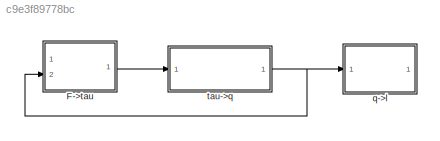
MODEL slx_c9e3f89778bc
KIND model
CONFIG AbsTol = auto
CONFIG EnableMultiTasking = off
CONFIG FixedStep = auto
CONFIG MaxStep = auto
CONFIG MinStep = auto
CONFIG RelTol = 1e-3
CONFIG SampleTimeConstraint = Unconstrained
CONFIG Solver = VariableStepAuto
CONFIG SolverName = VariableStepAuto
CONFIG StartTime = 0.0
CONFIG StopTime = 10.0
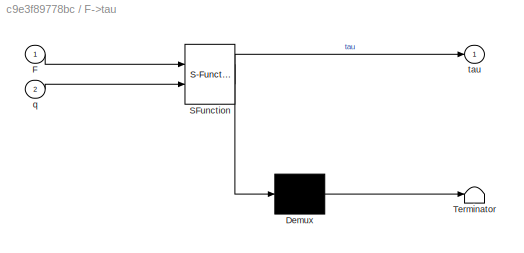
BLOCK [SubSystem] F->tau
  ErrorFcn = Stateflow.Translate.translate
  PermitHierarchicalResolution = ExplicitOnly
  Ports = [2, 1]
  RequestExecContextInheritance = off
  SFBlockType = MATLAB Function
  TreatAsAtomicUnit = on
BLOCK [Demux] F->tau/ Demux 
  Outputs = 1
  Ports = [1, 1]
BLOCK [S-Function] F->tau/ SFunction 
  EnableBusSupport = on
  FunctionName = sf_sfun
  PortCounts = [2 2]
  Ports = [2, 2]
  SFcnIsStateOwnerBlock = off
  SFunctionDeploymentMode = off
  Tag = Stateflow S-Function Controller 2
BLOCK [Terminator] F->tau/ Terminator 
BLOCK [Inport] F->tau/F
  IconDisplay = Port number
BLOCK [Inport] F->tau/q
  IconDisplay = Port number
  Port = 2
BLOCK [Outport] F->tau/tau
  IconDisplay = Port number
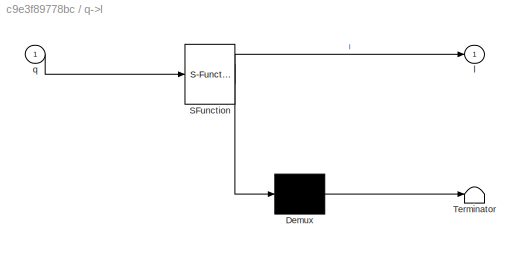
BLOCK [SubSystem] q->l
  ErrorFcn = Stateflow.Translate.translate
  PermitHierarchicalResolution = ExplicitOnly
  Ports = [1, 1]
  RequestExecContextInheritance = off
  SFBlockType = MATLAB Function
  TreatAsAtomicUnit = on
BLOCK [Demux] q->l/ Demux 
  Outputs = 1
  Ports = [1, 1]
BLOCK [S-Function] q->l/ SFunction 
  EnableBusSupport = on
  FunctionName = sf_sfun
  PortCounts = [1 2]
  Ports = [1, 2]
  SFcnIsStateOwnerBlock = off
  SFunctionDeploymentMode = off
  Tag = Stateflow S-Function Controller 1
BLOCK [Terminator] q->l/ Terminator 
BLOCK [Outport] q->l/l
  IconDisplay = Port number
BLOCK [Inport] q->l/q
  IconDisplay = Port number
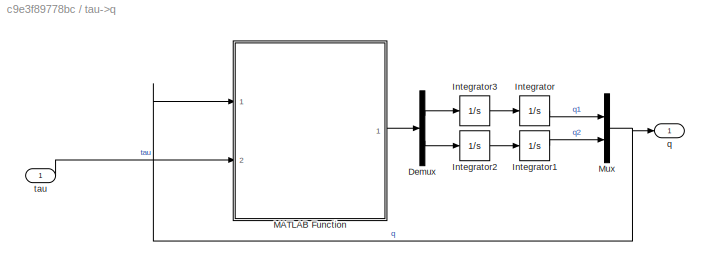
BLOCK [SubSystem] tau->q
  Ports = [1, 1]
  RequestExecContextInheritance = off
BLOCK [Demux] tau->q/Demux
  DisplayOption = bar
  Outputs = 2
  Ports = [1, 2]
BLOCK [Integrator] tau->q/Integrator
  InitialCondition = q1_0
  Ports = [1, 1]
BLOCK [Integrator] tau->q/Integrator1
  InitialCondition = q2_0
  Ports = [1, 1]
BLOCK [Integrator] tau->q/Integrator2
  InitialCondition = q2_dot_0
  Ports = [1, 1]
BLOCK [Integrator] tau->q/Integrator3
  InitialCondition = q1_dot_0
  Ports = [1, 1]
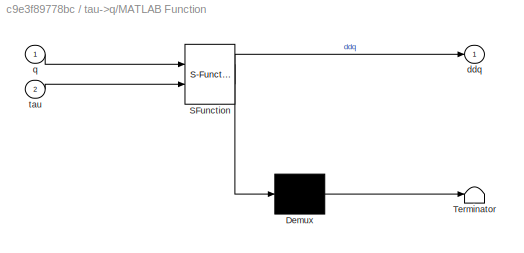
BLOCK [SubSystem] tau->q/MATLAB Function
  ErrorFcn = Stateflow.Translate.translate
  PermitHierarchicalResolution = ExplicitOnly
  Ports = [2, 1]
  RequestExecContextInheritance = off
  SFBlockType = MATLAB Function
  TreatAsAtomicUnit = on
BLOCK [Demux] tau->q/MATLAB Function/ Demux 
  Outputs = 1
  Ports = [1, 1]
BLOCK [S-Function] tau->q/MATLAB Function/ SFunction 
  EnableBusSupport = off
  FunctionName = sf_sfun
  PortCounts = [2 2]
  Ports = [2, 2]
  SFcnIsStateOwnerBlock = off
  SFunctionDeploymentMode = off
  Tag = Stateflow S-Function Controller 3
BLOCK [Terminator] tau->q/MATLAB Function/ Terminator 
BLOCK [Outport] tau->q/MATLAB Function/ddq
  IconDisplay = Port number
BLOCK [Inport] tau->q/MATLAB Function/q
  IconDisplay = Port number
BLOCK [Inport] tau->q/MATLAB Function/tau
  IconDisplay = Port number
  Port = 2
BLOCK [Mux] tau->q/Mux
  DisplayOption = bar
  Inputs = 2
  Ports = [2, 1]
BLOCK [Outport] tau->q/q
  IconDisplay = Port number
BLOCK [Inport] tau->q/tau
  IconDisplay = Port number
LINE F->tau:1 -> tau->q:1
LINE tau->q/Demux:1 -> tau->q/Integrator3:1
LINE tau->q/Demux:2 -> tau->q/Integrator2:1
LINE tau->q/Integrator1:1 -> tau->q/Mux:2
LINE tau->q/Integrator2:1 -> tau->q/Integrator1:1
LINE tau->q/Integrator3:1 -> tau->q/Integrator:1
LINE tau->q/Integrator:1 -> tau->q/Mux:1
LINE tau->q/MATLAB Function:1 -> tau->q/Demux:1
NET tau->q/Mux:1 -> tau->q/MATLAB Function:1, tau->q/q:1
LINE tau->q/tau:1 -> tau->q/MATLAB Function:2
NET tau->q:1 -> F->tau:2, q->l:1
note: NET lines group one-source signal fan-out (src -> all destinations, sorted); 1:1 wires keep LINE
CHART q->l states=1 transitions=1
  STATE_LABEL 'eML_blk_kernel()'
  STATE_LABEL 'SCRIPT:\nfunction l = fcn(q)\n\nq1 = q(1);\nq2 = q(2);\n\nl = [sqrt((sin(q1).*(1.0./1.0e1)-3.707106781186548e-1).^2+(cos(q1).*(1.0./1.0e1)-sqrt(2.0).*(1.0./2.0e1)).^2);sqrt((sin(q2).*(1.0./1.0e1)-3.707106781186548e-1).^2+(cos(q2).*(1.0./1.0e1)-sqrt(2.0).*(1.0./2.0e1)).^2)];\n'
CHART F->tau states=1 transitions=1
  STATE_LABEL 'eML_blk_kernel()'
  STATE_LABEL 'SCRIPT:\nfunction tau = fcn(F,q)\n\nq1 = q(1);\nq2 = q(2);\n\nJ = [\n    [ -(L0*(2*Lp*cos(q1) + 2^(1/2)*L0*cos(q1) - 2^(1/2)*L0*sin(q1)))/((2*Lp + 2^(1/2)*L0 - 2*L0*sin(q1))^2 + L0^2*(2*cos(q1) - 2^(1/2))^2)^(1/2),                                                                                                                                          0];\n    [                                              ...<+256ch>'
CHART tau->q/MATLAB Function states=1 transitions=1
  STATE_LABEL 'eML_blk_kernel()'
  STATE_LABEL 'SCRIPT:\nfunction ddq = fcn(q,tau)\n\nddq1 = (2^(1/2)*L0^2*k1*sin(q1 + q2)*(2*d10 - 2^(1/2)*(-L0^2*(cos(q1 + q2) - 1))^(1/2)))/(8*(-L0^2*(cos(q1 + q2) - 1))^(1/2)) - (2^(1/2)*L0^2*k2*(d20 - 2^(1/2)*(L0^2*(2*sin(pi/9) + cos(q1 + q2 + (2*pi)/9) - 2*sin(q1 + q2 + pi/9) - cos(q1 + q2) + 2))^(1/2))*(2*cos(q1 + q2 + pi/9) + sin(q1 + q2 + (2*pi)/9) - sin(q1 + q2)))/(2*(L0^2*(2*sin(pi/9) + cos(q1 + q2 + (2*p...<+506ch>'
